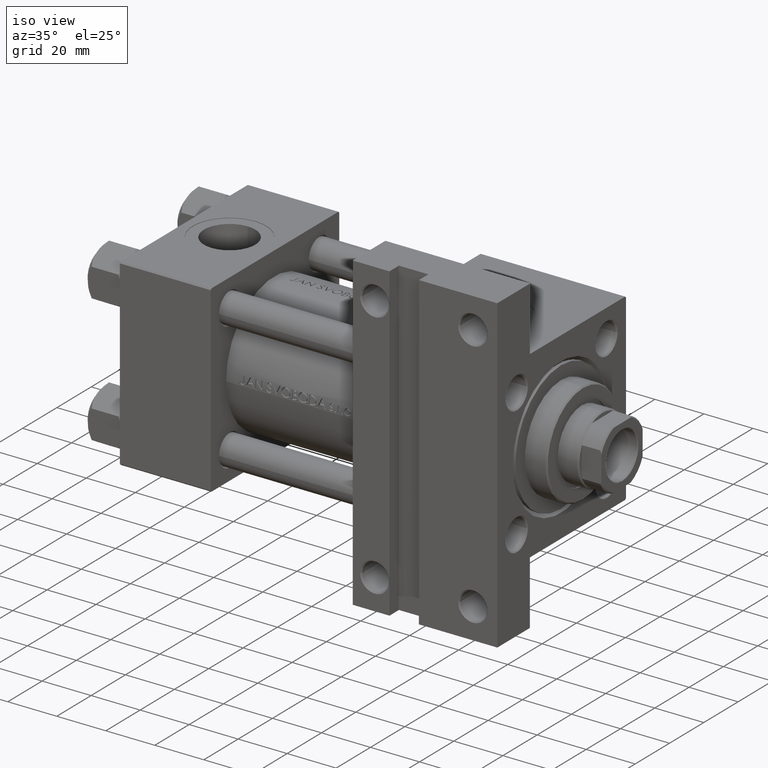
[diagram: clean part render]
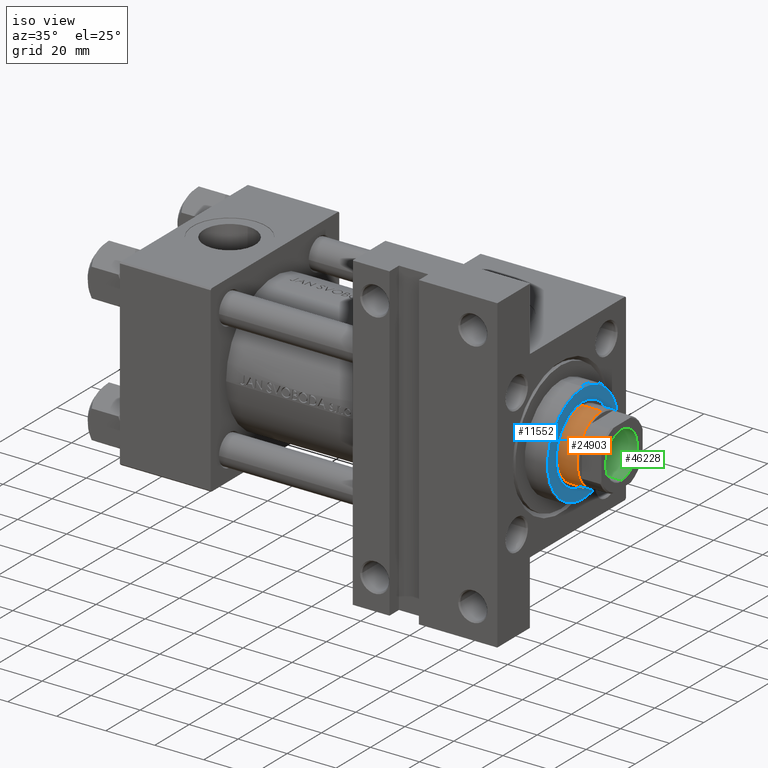
[diagram: same view with three faces highlighted in distinct colors, each labeled with its STEP entity id]
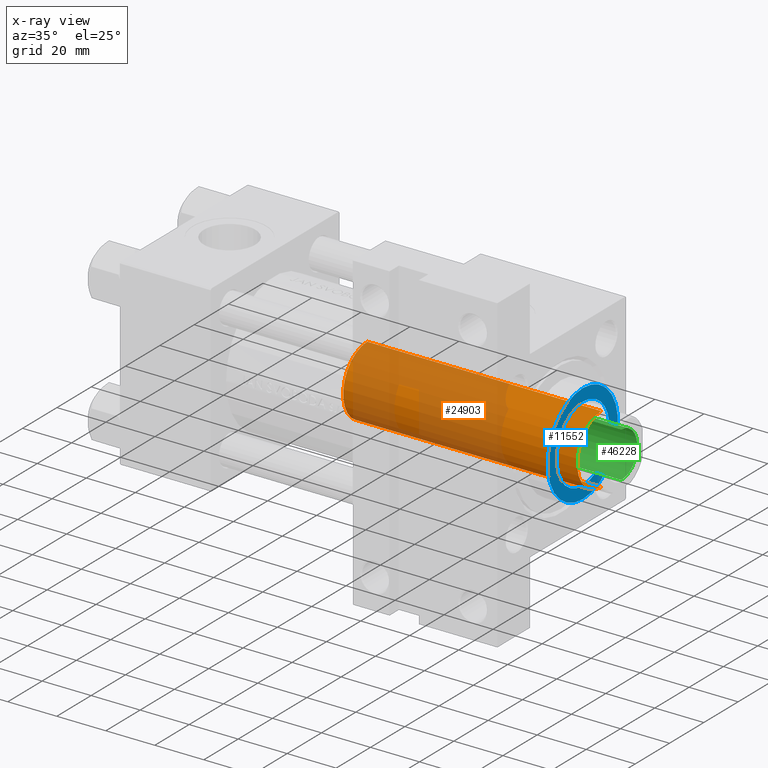
[diagram: x-ray of the same camera — body ghosted, the three highlighted faces saturated]
A machine part, iso view with three faces highlighted in distinct colors.
The next image is the same camera in x-ray (body ghosted, the three faces saturated) — at least one of them is partly hidden behind the body in this view.
Their STEP definitions:

[orange] entity #24903 — the highlighted cylindrical surface (partial cylindrical patch) has radius 14 mm, axis along (-1, 0, 0).
#838 = CARTESIAN_POINT ( 'NONE',  ( 0.000000000000000000, 0.000000000000000000, 133.5000000000000284 ) ) ;
#1855 = FACE_OUTER_BOUND ( 'NONE', #31980, .T. ) ;
#4023 = CARTESIAN_POINT ( 'NONE',  ( 14.00000000000000178, 1.714505518806294835E-15, 38.00000000000000000 ) ) ;
#5060 = CIRCLE ( 'NONE', #15496, 14.00000000000000178 ) ;
#7545 = DIRECTION ( 'NONE',  ( 0.000000000000000000, 0.000000000000000000, 1.000000000000000000 ) ) ;
#8380 = DIRECTION ( 'NONE',  ( 1.000000000000000000, 0.000000000000000000, 0.000000000000000000 ) ) ;
#9332 = EDGE_CURVE ( 'NONE', #34326, #18754, #37318, .T. ) ;
#9520 = ORIENTED_EDGE ( 'NONE', *, *, #18611, .T. ) ;
#10570 = VECTOR ( 'NONE', #26568, 1000.000000000000000 ) ;
#11007 = ORIENTED_EDGE ( 'NONE', *, *, #15030, .F. ) ;
#11429 = ORIENTED_EDGE ( 'NONE', *, *, #14475, .T. ) ;
#12255 = AXIS2_PLACEMENT_3D ( 'NONE', #838, #27735, #8380 ) ;
#14475 = EDGE_CURVE ( 'NONE', #40669, #34326, #33918, .T. ) ;
#15030 = EDGE_CURVE ( 'NONE', #40669, #20773, #29847, .T. ) ;
#15496 = AXIS2_PLACEMENT_3D ( 'NONE', #34433, #7545, #29691 ) ;
#17186 = CARTESIAN_POINT ( 'NONE',  ( 0.000000000000000000, 0.000000000000000000, 134.0000000000000000 ) ) ;
#18611 = EDGE_CURVE ( 'NONE', #18754, #20773, #5060, .T. ) ;
#18754 = VERTEX_POINT ( 'NONE', #4023 ) ;
#20773 = VERTEX_POINT ( 'NONE', #41127 ) ;
#22221 = DIRECTION ( 'NONE',  ( -0.000000000000000000, -0.000000000000000000, -1.000000000000000000 ) ) ;
#22546 = CARTESIAN_POINT ( 'NONE',  ( -14.00000000000000178, 0.000000000000000000, 134.0000000000000000 ) ) ;
#24247 = CYLINDRICAL_SURFACE ( 'NONE', #42252, 14.00000000000000178 ) ;
#24903 = ADVANCED_FACE ( 'NONE', ( #1855 ), #24247, .T. ) ;
#26568 = DIRECTION ( 'NONE',  ( -0.000000000000000000, -0.000000000000000000, -1.000000000000000000 ) ) ;
#27735 = DIRECTION ( 'NONE',  ( 0.000000000000000000, 0.000000000000000000, -1.000000000000000000 ) ) ;
#29691 = DIRECTION ( 'NONE',  ( 1.000000000000000000, 0.000000000000000000, 0.000000000000000000 ) ) ;
#29847 = LINE ( 'NONE', #22546, #10570 ) ;
#31898 = CARTESIAN_POINT ( 'NONE',  ( 14.00000000000000178, 1.714505518806294835E-15, 133.5000000000000284 ) ) ;
#31980 = EDGE_LOOP ( 'NONE', ( #11429, #46946, #9520, #11007 ) ) ;
#32525 = DIRECTION ( 'NONE',  ( -1.000000000000000000, 0.000000000000000000, 0.000000000000000000 ) ) ;
#32969 = VECTOR ( 'NONE', #22221, 1000.000000000000000 ) ;
#33918 = CIRCLE ( 'NONE', #12255, 14.00000000000000178 ) ;
#34326 = VERTEX_POINT ( 'NONE', #31898 ) ;
#34433 = CARTESIAN_POINT ( 'NONE',  ( 0.000000000000000000, 0.000000000000000000, 38.00000000000000000 ) ) ;
#37318 = LINE ( 'NONE', #41081, #32969 ) ;
#40669 = VERTEX_POINT ( 'NONE', #42857 ) ;
#41081 = CARTESIAN_POINT ( 'NONE',  ( 14.00000000000000178, 1.714505518806294835E-15, 134.0000000000000000 ) ) ;
#41127 = CARTESIAN_POINT ( 'NONE',  ( -14.00000000000000178, 0.000000000000000000, 38.00000000000000000 ) ) ;
#42252 = AXIS2_PLACEMENT_3D ( 'NONE', #17186, #47343, #32525 ) ;
#42857 = CARTESIAN_POINT ( 'NONE',  ( -14.00000000000000178, 0.000000000000000000, 133.5000000000000284 ) ) ;
#46946 = ORIENTED_EDGE ( 'NONE', *, *, #9332, .T. ) ;
#47343 = DIRECTION ( 'NONE',  ( -0.000000000000000000, -0.000000000000000000, -1.000000000000000000 ) ) ;

[blue] entity #11552 — the highlighted planar face has unit normal (1, 0, 0).
#721 = CIRCLE ( 'NONE', #6350, 15.50000000000000000 ) ;
#1148 = EDGE_LOOP ( 'NONE', ( #16172, #10874 ) ) ;
#2038 = EDGE_CURVE ( 'NONE', #7016, #31386, #19045, .T. ) ;
#2042 = VERTEX_POINT ( 'NONE', #35502 ) ;
#2480 = AXIS2_PLACEMENT_3D ( 'NONE', #25692, #29226, #32984 ) ;
#2878 = EDGE_LOOP ( 'NONE', ( #28616, #48105 ) ) ;
#6350 = AXIS2_PLACEMENT_3D ( 'NONE', #36523, #25711, #40532 ) ;
#6964 = FACE_BOUND ( 'NONE', #1148, .T. ) ;
#7016 = VERTEX_POINT ( 'NONE', #30427 ) ;
#9675 = EDGE_CURVE ( 'NONE', #31386, #7016, #47426, .T. ) ;
#10874 = ORIENTED_EDGE ( 'NONE', *, *, #28563, .F. ) ;
#11092 = DIRECTION ( 'NONE',  ( 0.000000000000000000, 0.000000000000000000, 1.000000000000000000 ) ) ;
#11552 = ADVANCED_FACE ( 'NONE', ( #6964, #48438 ), #17789, .T. ) ;
#16172 = ORIENTED_EDGE ( 'NONE', *, *, #42495, .F. ) ;
#17789 = PLANE ( 'NONE',  #33842 ) ;
#18499 = DIRECTION ( 'NONE',  ( 1.000000000000000000, 0.000000000000000000, 0.000000000000000000 ) ) ;
#19045 = CIRCLE ( 'NONE', #47951, 20.49999999999999645 ) ;
#21810 = DIRECTION ( 'NONE',  ( 0.000000000000000000, 0.000000000000000000, 1.000000000000000000 ) ) ;
#22398 = DIRECTION ( 'NONE',  ( 1.000000000000000000, 0.000000000000000000, 0.000000000000000000 ) ) ;
#24320 = CARTESIAN_POINT ( 'NONE',  ( 20.49999999999999645, 2.541142108230757480E-15, 37.69999999999999574 ) ) ;
#25598 = AXIS2_PLACEMENT_3D ( 'NONE', #44751, #11092, #22398 ) ;
#25692 = CARTESIAN_POINT ( 'NONE',  ( 0.000000000000000000, 0.000000000000000000, 37.69999999999999574 ) ) ;
#25711 = DIRECTION ( 'NONE',  ( 0.000000000000000000, 0.000000000000000000, 1.000000000000000000 ) ) ;
#26051 = CARTESIAN_POINT ( 'NONE',  ( 0.000000000000000000, 0.000000000000000000, 37.69999999999999574 ) ) ;
#28563 = EDGE_CURVE ( 'NONE', #2042, #41910, #48859, .T. ) ;
#28616 = ORIENTED_EDGE ( 'NONE', *, *, #2038, .T. ) ;
#29226 = DIRECTION ( 'NONE',  ( 0.000000000000000000, 0.000000000000000000, 1.000000000000000000 ) ) ;
#30427 = CARTESIAN_POINT ( 'NONE',  ( -20.49999999999999645, 0.000000000000000000, 37.69999999999999574 ) ) ;
#31386 = VERTEX_POINT ( 'NONE', #24320 ) ;
#31393 = CARTESIAN_POINT ( 'NONE',  ( 15.50000000000000000, 0.000000000000000000, 37.69999999999999574 ) ) ;
#32871 = CARTESIAN_POINT ( 'NONE',  ( 0.000000000000000000, 0.000000000000000000, 37.69999999999999574 ) ) ;
#32984 = DIRECTION ( 'NONE',  ( 1.000000000000000000, 0.000000000000000000, 0.000000000000000000 ) ) ;
#33842 = AXIS2_PLACEMENT_3D ( 'NONE', #32871, #21810, #37393 ) ;
#35502 = CARTESIAN_POINT ( 'NONE',  ( -15.50000000000000000, 1.898202538678397557E-15, 37.69999999999999574 ) ) ;
#36523 = CARTESIAN_POINT ( 'NONE',  ( 0.000000000000000000, 0.000000000000000000, 37.69999999999999574 ) ) ;
#37393 = DIRECTION ( 'NONE',  ( 1.000000000000000000, 0.000000000000000000, -0.000000000000000000 ) ) ;
#40532 = DIRECTION ( 'NONE',  ( 1.000000000000000000, 0.000000000000000000, 0.000000000000000000 ) ) ;
#41910 = VERTEX_POINT ( 'NONE', #31393 ) ;
#42495 = EDGE_CURVE ( 'NONE', #41910, #2042, #721, .T. ) ;
#44751 = CARTESIAN_POINT ( 'NONE',  ( 0.000000000000000000, 0.000000000000000000, 37.69999999999999574 ) ) ;
#45870 = DIRECTION ( 'NONE',  ( 0.000000000000000000, 0.000000000000000000, 1.000000000000000000 ) ) ;
#47426 = CIRCLE ( 'NONE', #2480, 20.49999999999999645 ) ;
#47951 = AXIS2_PLACEMENT_3D ( 'NONE', #26051, #45870, #18499 ) ;
#48105 = ORIENTED_EDGE ( 'NONE', *, *, #9675, .T. ) ;
#48438 = FACE_OUTER_BOUND ( 'NONE', #2878, .T. ) ;
#48859 = CIRCLE ( 'NONE', #25598, 15.50000000000000000 ) ;

[green] entity #46228 — the highlighted cylindrical surface (edge-blend (fillet) strip) has radius 9.25 mm, axis along (1, 0, 0).
#444 = LINE ( 'NONE', #35861, #1507 ) ;
#1507 = VECTOR ( 'NONE', #35112, 1000.000000000000000 ) ;
#1654 = EDGE_CURVE ( 'NONE', #8281, #16601, #10048, .T. ) ;
#1788 = AXIS2_PLACEMENT_3D ( 'NONE', #46718, #3755, #35420 ) ;
#1830 = ORIENTED_EDGE ( 'NONE', *, *, #1654, .T. ) ;
#1881 = CYLINDRICAL_SURFACE ( 'NONE', #24940, 9.249999999999994671 ) ;
#2737 = CARTESIAN_POINT ( 'NONE',  ( 9.249999999999992895, 0.000000000000000000, 107.0000000000000142 ) ) ;
#2979 = DIRECTION ( 'NONE',  ( -0.000000000000000000, -0.000000000000000000, 1.000000000000000000 ) ) ;
#3565 = CARTESIAN_POINT ( 'NONE',  ( -9.249999999999994671, 1.132798289211300909E-15, 141.7000000000000171 ) ) ;
#3755 = DIRECTION ( 'NONE',  ( -0.000000000000000000, -0.000000000000000000, 1.000000000000000000 ) ) ;
#5017 = ORIENTED_EDGE ( 'NONE', *, *, #12331, .F. ) ;
#5604 = EDGE_CURVE ( 'NONE', #40121, #39683, #444, .T. ) ;
#6984 = ORIENTED_EDGE ( 'NONE', *, *, #5604, .F. ) ;
#8281 = VERTEX_POINT ( 'NONE', #38859 ) ;
#8529 = DIRECTION ( 'NONE',  ( 0.000000000000000000, 0.000000000000000000, 1.000000000000000000 ) ) ;
#9041 = DIRECTION ( 'NONE',  ( 1.000000000000000000, 0.000000000000000000, 0.000000000000000000 ) ) ;
#10048 = LINE ( 'NONE', #21836, #13432 ) ;
#10898 = CIRCLE ( 'NONE', #39770, 9.249999999999994671 ) ;
#12331 = EDGE_CURVE ( 'NONE', #8281, #40121, #37077, .T. ) ;
#12630 = CARTESIAN_POINT ( 'NONE',  ( 9.249999999999994671, 0.000000000000000000, 141.7000000000000171 ) ) ;
#13432 = VECTOR ( 'NONE', #2979, 1000.000000000000000 ) ;
#13942 = DIRECTION ( 'NONE',  ( -0.000000000000000000, -0.000000000000000000, 1.000000000000000000 ) ) ;
#14183 = FACE_OUTER_BOUND ( 'NONE', #40623, .T. ) ;
#16601 = VERTEX_POINT ( 'NONE', #3565 ) ;
#21836 = CARTESIAN_POINT ( 'NONE',  ( -9.249999999999994671, 1.132798289211300909E-15, 142.0000000000000284 ) ) ;
#24940 = AXIS2_PLACEMENT_3D ( 'NONE', #33045, #13942, #29285 ) ;
#29285 = DIRECTION ( 'NONE',  ( 1.000000000000000000, 0.000000000000000000, 0.000000000000000000 ) ) ;
#31641 = ORIENTED_EDGE ( 'NONE', *, *, #38472, .T. ) ;
#33045 = CARTESIAN_POINT ( 'NONE',  ( 0.000000000000000000, 0.000000000000000000, 142.0000000000000284 ) ) ;
#33680 = CARTESIAN_POINT ( 'NONE',  ( 0.000000000000000000, 0.000000000000000000, 141.7000000000000171 ) ) ;
#35112 = DIRECTION ( 'NONE',  ( -0.000000000000000000, -0.000000000000000000, 1.000000000000000000 ) ) ;
#35420 = DIRECTION ( 'NONE',  ( 1.000000000000000000, 0.000000000000000000, 0.000000000000000000 ) ) ;
#35861 = CARTESIAN_POINT ( 'NONE',  ( 9.249999999999994671, 0.000000000000000000, 142.0000000000000284 ) ) ;
#37077 = CIRCLE ( 'NONE', #1788, 9.249999999999992895 ) ;
#38472 = EDGE_CURVE ( 'NONE', #16601, #39683, #10898, .T. ) ;
#38859 = CARTESIAN_POINT ( 'NONE',  ( -9.249999999999992895, 1.132798289211300712E-15, 107.0000000000000142 ) ) ;
#39683 = VERTEX_POINT ( 'NONE', #12630 ) ;
#39770 = AXIS2_PLACEMENT_3D ( 'NONE', #33680, #8529, #9041 ) ;
#40121 = VERTEX_POINT ( 'NONE', #2737 ) ;
#40623 = EDGE_LOOP ( 'NONE', ( #5017, #1830, #31641, #6984 ) ) ;
#46228 = ADVANCED_FACE ( 'NONE', ( #14183 ), #1881, .F. ) ;
#46718 = CARTESIAN_POINT ( 'NONE',  ( 0.000000000000000000, 0.000000000000000000, 107.0000000000000142 ) ) ;